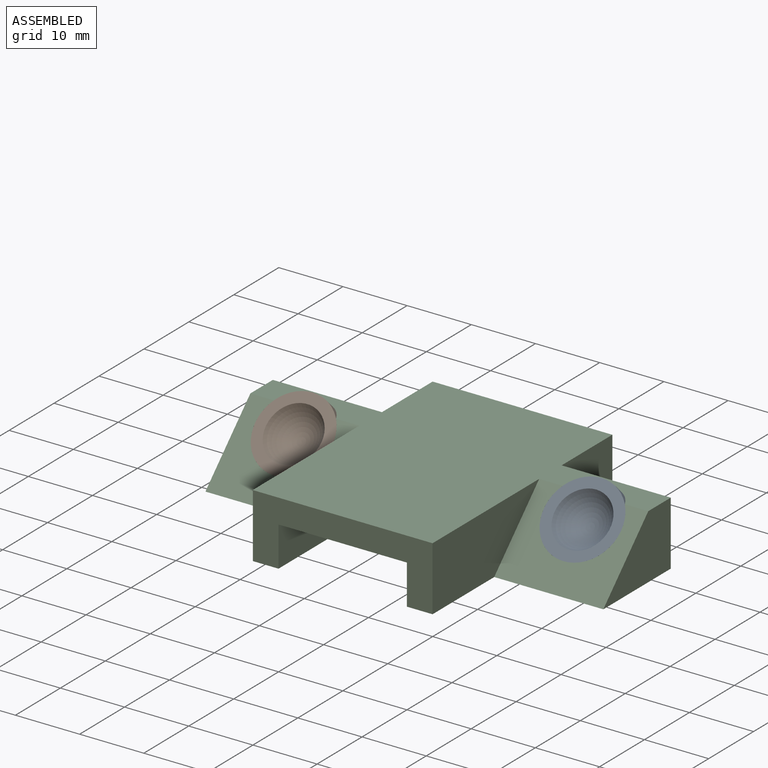
[diagram: assembled view]
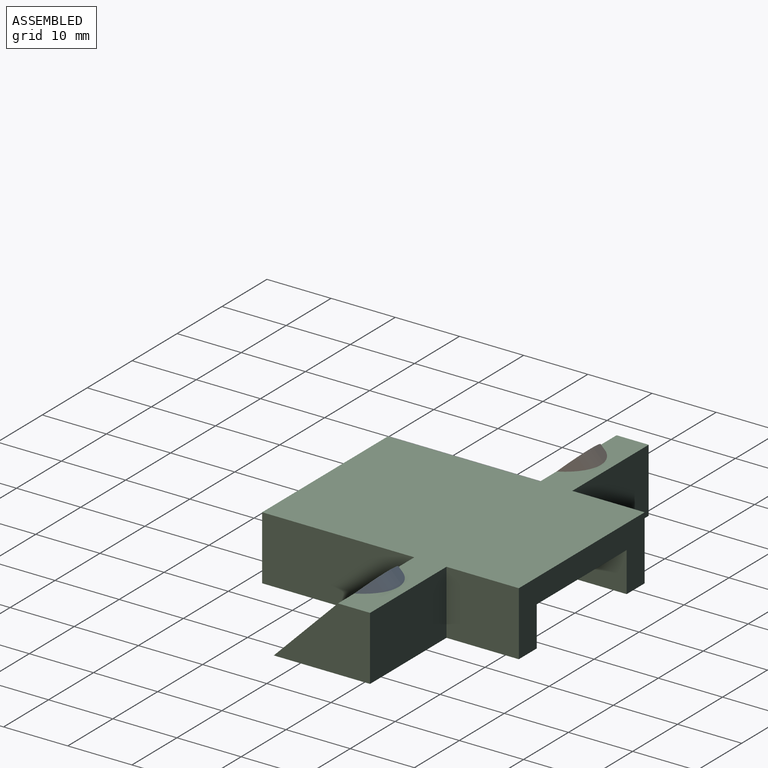
[diagram: assembled view, second angle]
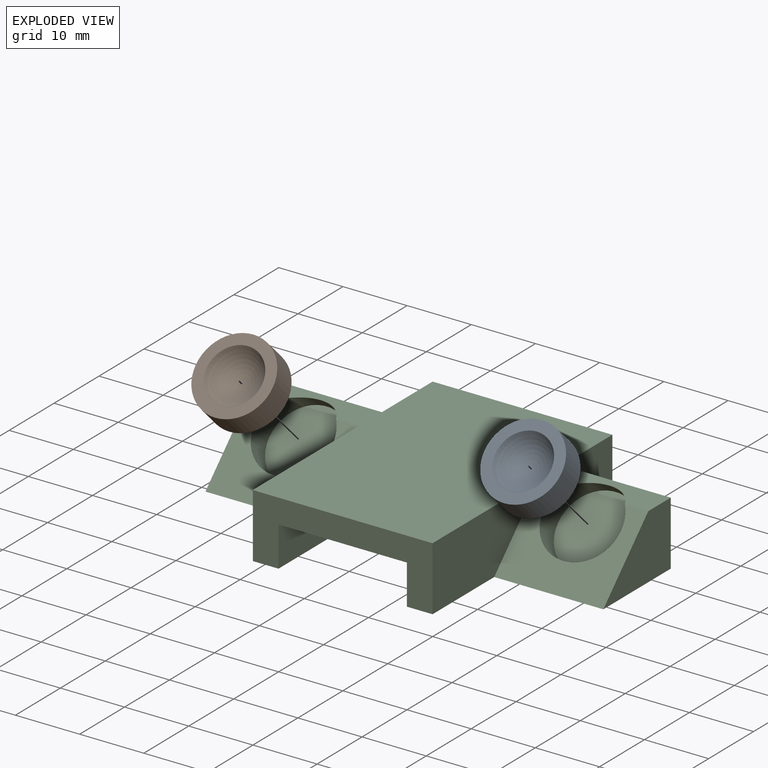
[diagram: exploded view]
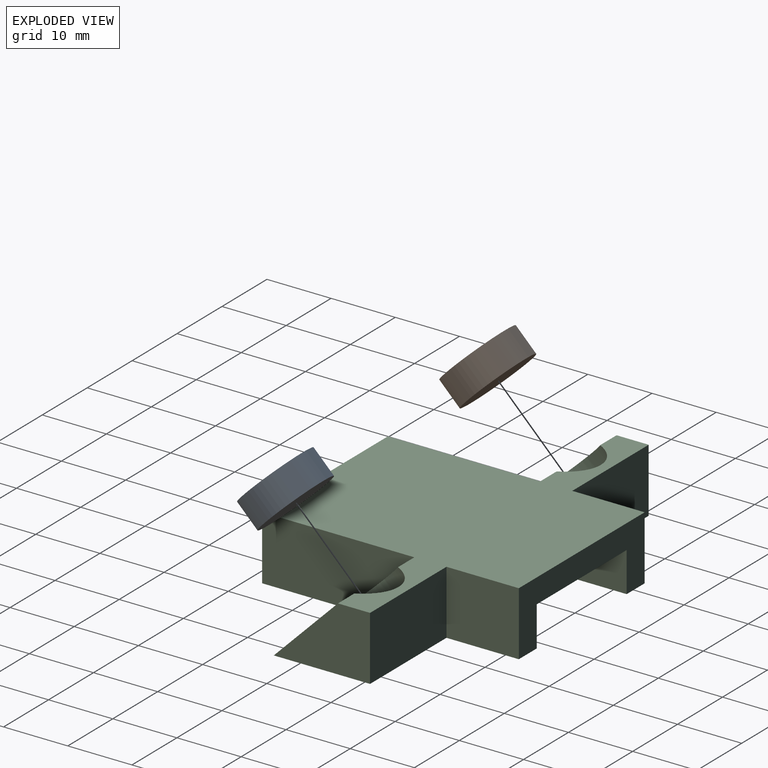
[diagram: exploded view, second angle]
ASSEMBLY  parts=3 mates=2
PART A: 4 faces, bbox 4.5x12x12 mm
  f0: plane 12x12mm, normal (-1,0,0), area 113.1mm2, adj f3
  f1: sphere r=5mm, area 78.5mm2, adj f2
  f2: plane 12x12mm, normal (1,0,0), area 54.2mm2, adj f1,f3
  f3: cylinder r=6mm len=12mm, axis (-1,0,0), area 169.6mm2, adj f0,f2
PART B: same geometry as A
PART C: 22 faces, bbox 62x40x11.7 mm
  f0: plane 15x10mm, normal (-1,0,0), area 100mm2, adj f3,f11,f13,f19
  f1: plane 17x10mm, normal (0,-0.71,0.71), area 144mm2, adj f2,f3,f4,f6,f17
  f2: plane 15x10mm, normal (1,0,0), area 100mm2, adj f1,f3,f4,f7
  f3: plane 62x40mm, normal (0,0,1), area 1242.7mm2, adj f0,f1,f2,f5,f6,f7,f8,f9
  f4: plane 40x21mm, normal (0,0,-1), area 415mm2, adj f1,f2,f5,f6,f7,f8,f9,f14
  f5: plane 28x10mm, normal (0,-1,0), area 155.8mm2, adj f3,f4,f6,f12,f13,f14,f15,f16
  f6: plane 23.72x10mm, normal (1,0,0), area 187.2mm2, adj f1,f3,f4,f5
  f7: plane 17x10mm, normal (0,1,0), area 170mm2, adj f2,f3,f4,f8
  f8: plane 11.28x10mm, normal (1,0,0), area 112.8mm2, adj f3,f4,f7,f9
  f9: plane 28x10mm, normal (0,1,0), area 155.8mm2, adj f3,f4,f8,f10,f13,f14,f15,f16
  f10: plane 11.28x10mm, normal (-1,0,0), area 112.8mm2, adj f3,f9,f11,f13
  f11: plane 17x10mm, normal (0,1,0), area 170mm2, adj f0,f3,f10,f13
  f12: plane 23.72x10mm, normal (-1,0,0), area 187.2mm2, adj f3,f5,f13,f19
  f13: plane 40x21mm, normal (0,0,-1), area 415mm2, adj f0,f5,f9,f10,f11,f12,f16,f19
  f14: plane 40x6.21mm, normal (-1,0,0), area 248.5mm2, adj f4,f5,f9,f15
  f15: plane 40x20mm, normal (0,0,-1), area 800mm2, adj f5,f9,f14,f16
  f16: plane 40x6.21mm, normal (1,0,0), area 248.5mm2, adj f5,f9,f13,f15
  f17: cylinder r=6mm len=12mm, axis (0,-0.71,0.71), area 151.4mm2, adj f1,f3,f18
  f18: plane 12x8.49mm, normal (0,-0.71,0.71), area 113.1mm2, adj f17
  f19: plane 17x10mm, normal (0,-0.71,0.71), area 144mm2, adj f0,f3,f12,f13,f20
  f20: cylinder r=6mm len=12mm, axis (0,-0.71,0.71), area 151.4mm2, adj f3,f19,f21
  f21: plane 12x8.49mm, normal (0,-0.71,0.71), area 113.1mm2, adj f20
PLACE A rot(axis=(-0.36,-0.36,-0.86),98.4deg) t=(6.01,-36.8,-40.42)mm
PLACE B rot(axis=(0.36,-0.86,-0.36),98.4deg) t=(24.28,7.94,4.31)mm
PLACE C t=(-16.49,3.53,0)mm
MATE cylindrical C.f17 <-> A.f3  axis (0,-0.71,0.71) through (6.01,7.94,4.31)mm
MATE cylindrical B.f3 <-> C.f20  axis (0,0.71,-0.71) through (-38.99,7.94,4.31)mm
